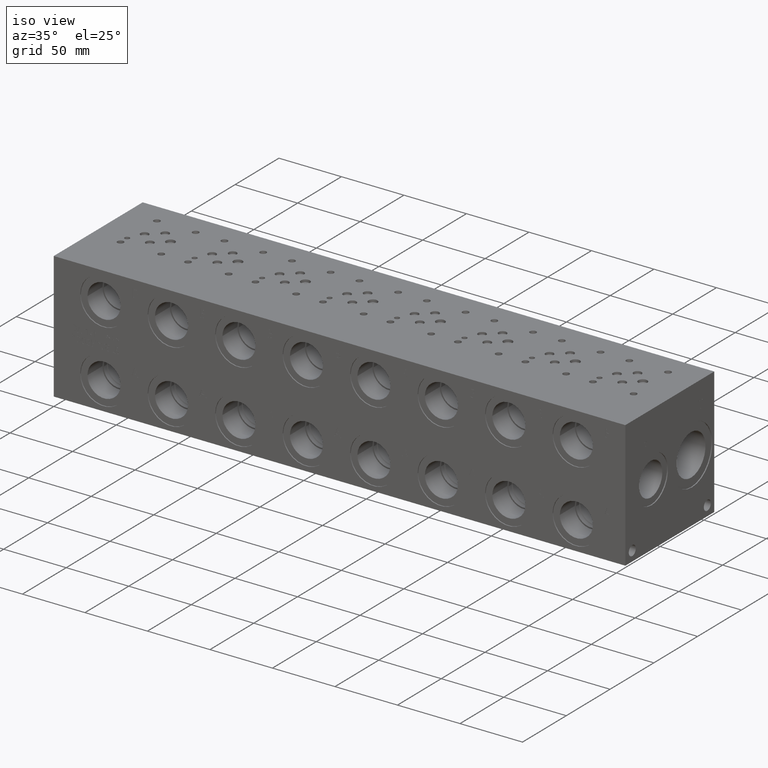
[diagram: clean part render]
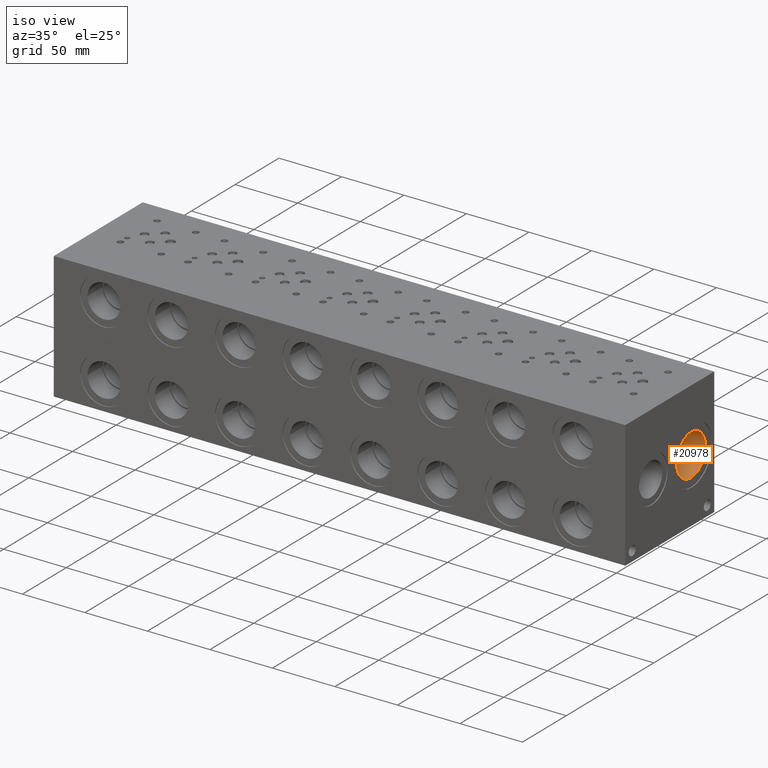
[diagram: same view with one face highlighted and labeled with its STEP entity id]
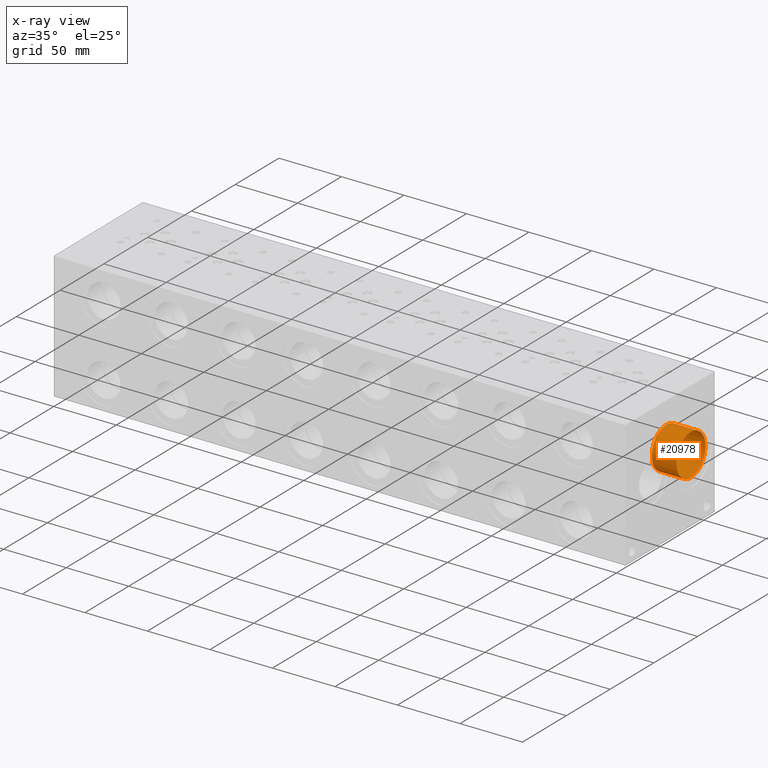
[diagram: x-ray of the same camera — body ghosted, the highlighted face saturated]
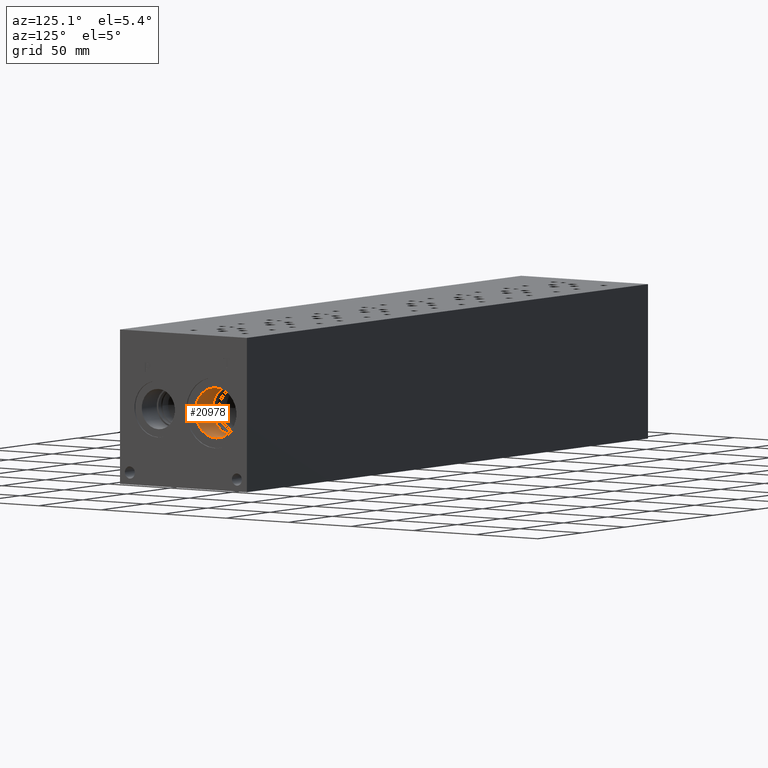
[diagram: same view with one face highlighted and labeled with its STEP entity id]
A machine part, iso view. The second image highlights one B-rep face of the part: STEP entity #20978.
The next image is the same camera in x-ray: the body ghosted, the highlighted face saturated — about 0% of this face is hidden behind the body in this view.
A second angle (auxiliary view) of the same face is appended — the face is thin or edge-on in the first view.
In plain terms, the highlighted cylindrical surface (bore or boss wall) has radius 16.4973 mm, axis along (-1, 0, 0).
Its self-contained STEP definition (entity closure, byte-faithful):
#252=CYLINDRICAL_SURFACE('',#22323,16.4973);
#1031=CIRCLE('',#22321,16.4973);
#1032=CIRCLE('',#22322,16.4973);
#1033=CIRCLE('',#22324,16.4973);
#1034=CIRCLE('',#22325,16.4973);
#2955=FACE_OUTER_BOUND('',#4214,.T.);
#4214=EDGE_LOOP('',(#17939,#17940,#17941,#17942,#17943,#17944));
#6058=LINE('',#36016,#7796);
#7796=VECTOR('',#26698,16.4973);
#9711=VERTEX_POINT('',#36010);
#9712=VERTEX_POINT('',#36011);
#9713=VERTEX_POINT('',#36015);
#9714=VERTEX_POINT('',#36017);
#12566=EDGE_CURVE('',#9711,#9712,#1031,.T.);
#12567=EDGE_CURVE('',#9712,#9711,#1032,.T.);
#12568=EDGE_CURVE('',#9712,#9713,#6058,.T.);
#12569=EDGE_CURVE('',#9713,#9714,#1033,.T.);
#12570=EDGE_CURVE('',#9714,#9713,#1034,.T.);
#17939=ORIENTED_EDGE('',*,*,#12566,.F.);
#17940=ORIENTED_EDGE('',*,*,#12567,.F.);
#17941=ORIENTED_EDGE('',*,*,#12568,.T.);
#17942=ORIENTED_EDGE('',*,*,#12569,.T.);
#17943=ORIENTED_EDGE('',*,*,#12570,.T.);
#17944=ORIENTED_EDGE('',*,*,#12568,.F.);
#20978=ADVANCED_FACE('',(#2955),#252,.F.);
#22321=AXIS2_PLACEMENT_3D('',#36012,#26692,#26693);
#22322=AXIS2_PLACEMENT_3D('',#36013,#26694,#26695);
#22323=AXIS2_PLACEMENT_3D('',#36014,#26696,#26697);
#22324=AXIS2_PLACEMENT_3D('',#36018,#26699,#26700);
#22325=AXIS2_PLACEMENT_3D('',#36019,#26701,#26702);
#26692=DIRECTION('center_axis',(-1.,0.,0.));
#26693=DIRECTION('ref_axis',(0.,0.,1.));
#26694=DIRECTION('center_axis',(-1.,0.,0.));
#26695=DIRECTION('ref_axis',(0.,0.,1.));
#26696=DIRECTION('center_axis',(-1.,0.,0.));
#26697=DIRECTION('ref_axis',(0.,0.,-1.));
#26698=DIRECTION('',(-1.,0.,0.));
#26699=DIRECTION('center_axis',(-1.,0.,0.));
#26700=DIRECTION('ref_axis',(0.,0.,1.));
#26701=DIRECTION('center_axis',(-1.,0.,0.));
#26702=DIRECTION('ref_axis',(0.,0.,1.));
#36010=CARTESIAN_POINT('',(456.4126,76.2,34.3027));
#36011=CARTESIAN_POINT('',(456.4126,76.2,67.2973));
#36012=CARTESIAN_POINT('Origin',(456.4126,76.2,50.8));
#36013=CARTESIAN_POINT('Origin',(456.4126,76.2,50.8));
#36014=CARTESIAN_POINT('Origin',(446.4685,76.2,50.8));
#36015=CARTESIAN_POINT('',(436.5244,76.2,67.2973));
#36016=CARTESIAN_POINT('',(446.4685,76.2,67.2973));
#36017=CARTESIAN_POINT('',(436.5244,76.2,34.3027));
#36018=CARTESIAN_POINT('Origin',(436.5244,76.2,50.8));
#36019=CARTESIAN_POINT('Origin',(436.5244,76.2,50.8));